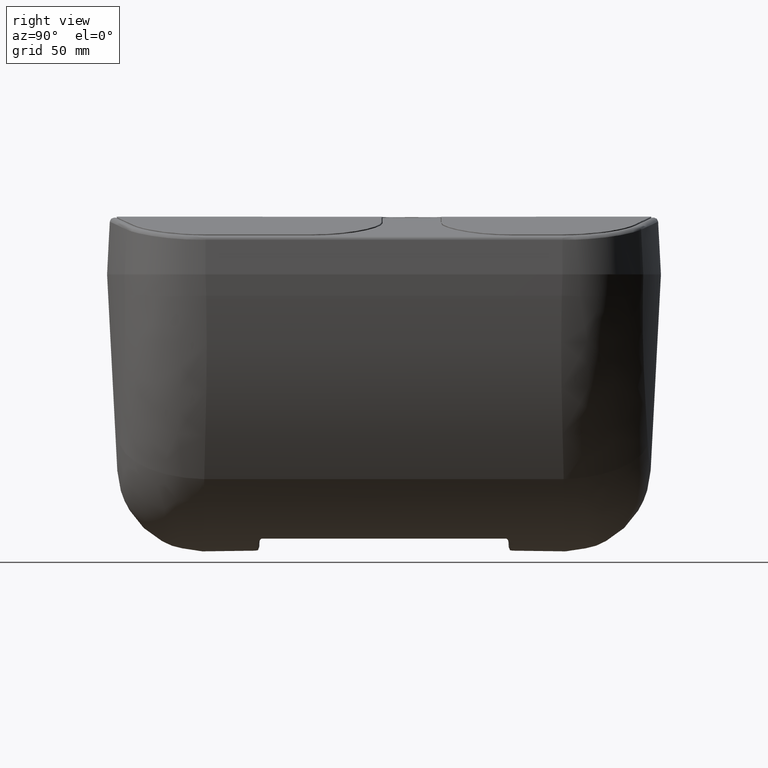
[diagram: clean part render]
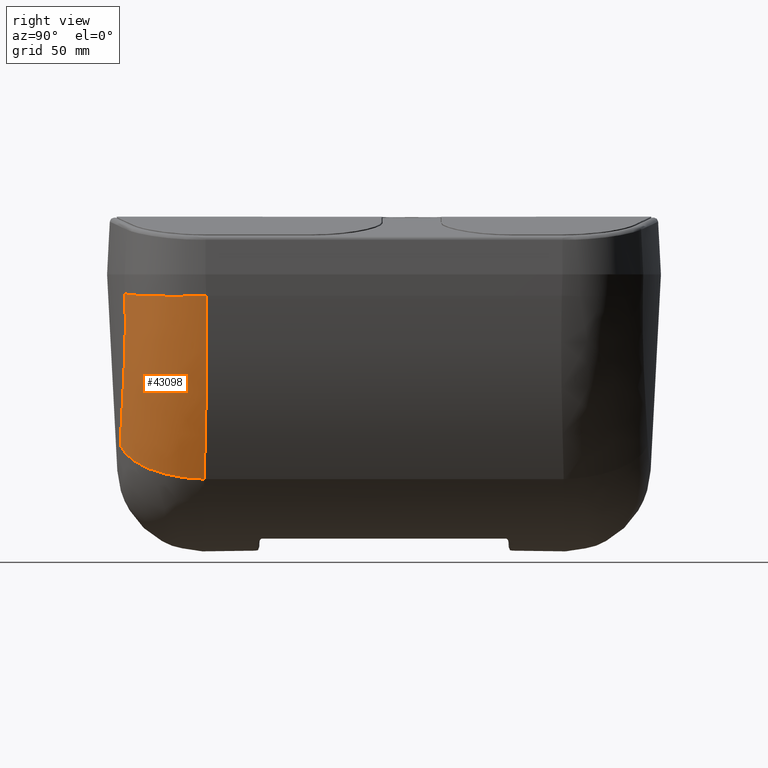
[diagram: same view with one face highlighted and labeled with its STEP entity id]
A machine part, right view. The second image highlights one B-rep face of the part: STEP entity #43098.
In plain terms, the highlighted face is a freeform B-spline surface patch.
Its self-contained STEP definition (entity closure, byte-faithful):
#28 = CARTESIAN_POINT ( 'NONE',  ( 102.6880744185381786, -74.46765090442934820, 180.0080427086077748 ) ) ;
#342 = CARTESIAN_POINT ( 'NONE',  ( 107.5233315510198793, -74.14801886505104278, 195.9130129633897184 ) ) ;
#1865 = CARTESIAN_POINT ( 'NONE',  ( 115.2677420138169424, -73.86664111753746909, 231.0019915778732695 ) ) ;
#2188 = CARTESIAN_POINT ( 'NONE',  ( 115.0557382207752966, -73.86460015047060779, 229.7412136715756503 ) ) ;
#2505 = CARTESIAN_POINT ( 'NONE',  ( 96.87713605865188526, -74.86188382930973262, 163.8505284648486509 ) ) ;
#2734 = CARTESIAN_POINT ( 'NONE',  ( 57.93484198085950965, -132.9534420501113630, 191.1462815431364106 ) ) ;
#2906 = CARTESIAN_POINT ( 'NONE',  ( 47.46240212546818782, -134.0877507554619683, 171.2327251379268773 ) ) ;
#3055 = CARTESIAN_POINT ( 'NONE',  ( 49.15040018680180367, -133.9357757998661498, 173.8437133007533930 ) ) ;
#3090 = DIRECTION ( 'NONE',  ( -0.8908958539379461250, -2.312964634635741971E-16, 0.4542076369196997310 ) ) ;
#3139 = CARTESIAN_POINT ( 'NONE',  ( 90.45401142443256504, -75.25871148540151978, 148.4622655863896625 ) ) ;
#3230 = CARTESIAN_POINT ( 'NONE',  ( 53.10353927042646660, -133.4935285167586017, 181.6343623793563040 ) ) ;
#3366 = CARTESIAN_POINT ( 'NONE',  ( 92.78147570289031876, -75.13207360624586784, 153.3153352518434360 ) ) ;
#3768 = CARTESIAN_POINT ( 'NONE',  ( 94.24478865777388137, -75.03165109083221296, 157.2748724945473668 ) ) ;
#3864 = CARTESIAN_POINT ( 'NONE',  ( 75.09791999875054103, -131.1901629204618871, 246.9448547064063462 ) ) ;
#4007 = CARTESIAN_POINT ( 'NONE',  ( 117.1956903018090088, -117.7084786861889967, 238.9633445920878785 ) ) ;
#4491 = CARTESIAN_POINT ( 'NONE',  ( 66.21844951055484785, -131.9402972552949507, 212.2081935436594620 ) ) ;
#4878 = CARTESIAN_POINT ( 'NONE',  ( 102.7926427599841190, -74.46049131991986769, 180.3241205648104142 ) ) ;
#5193 = CARTESIAN_POINT ( 'NONE',  ( 114.8527623671903370, -73.86348089053228705, 228.5569833686334391 ) ) ;
#6381 = CARTESIAN_POINT ( 'NONE',  ( 109.3779118012106295, -74.04002137304551923, 202.8781760469770461 ) ) ;
#6697 = CARTESIAN_POINT ( 'NONE',  ( 112.9091205139253873, -73.88293089900913913, 218.0408572802224114 ) ) ;
#7739 = CARTESIAN_POINT ( 'NONE',  ( 46.09141439600490031, -134.2186315959887395, 168.9002310336180699 ) ) ;
#7887 = CARTESIAN_POINT ( 'NONE',  ( 118.8363715756120058, -117.9975095657040924, 260.7092020585711794 ) ) ;
#7968 = CARTESIAN_POINT ( 'NONE',  ( 90.39076804418510847, -75.26229375422104795, 148.3208255347009015 ) ) ;
#8215 = CARTESIAN_POINT ( 'NONE',  ( 93.32560607171312483, -124.2410391985190472, 154.5846484020884475 ) ) ;
#8293 = CARTESIAN_POINT ( 'NONE',  ( 96.88669032588016705, -74.86125342028837792, 163.8751135697414156 ) ) ;
#8691 = CARTESIAN_POINT ( 'NONE',  ( 61.14674542171906779, -132.5516802088349380, 198.9621806254170622 ) ) ;
#9340 = CARTESIAN_POINT ( 'NONE',  ( 72.61991795630291335, -131.2963466133667509, 234.6433105888233683 ) ) ;
#10027 = CARTESIAN_POINT ( 'NONE',  ( 116.6317724241420279, -73.91007515785794624, 239.9237680583365488 ) ) ;
#10456 = B_SPLINE_CURVE_WITH_KNOTS ( 'NONE', 3,
 ( #51189, #60547, #36026, #55720, #10027, #16013, #29682, #1865, #2188, #11519, #31169, #49359, #5193, #39658, #30856, #50865, #50545, #6697, #26330, #24840, #6381, #44522, #31491, #14832, #21535, #26664, #342, #60206, #60864, #41162, #36345, #56026, #21845, #16983, #19701, #34502, #44212, #12149, #4878, #28, #61511, #32781, #56974, #23106, #52455, #27615, #32454, #28244, #26980, #38227, #42767, #61828, #17941, #43090, #62460, #37595, #36971, #46664, #8293, #2505, #22157, #47292, #56660, #52134, #3768, #42133, #27932, #12781, #18263, #47604, #3139, #7968, #47919, #41800, #57917, #37915, #17634, #57276, #62785 ),
 .UNSPECIFIED., .F., .F.,
 ( 4, 2, 2, 1, 1, 1, 1, 1, 1, 1, 2, 2, 2, 2, 1, 1, 1, 1, 1, 1, 1, 2, 2, 2, 2, 1, 1, 1, 1, 1, 1, 1, 2, 2, 2, 2, 2, 1, 1, 1, 1, 1, 2, 2, 2, 2, 1, 1, 1, 1, 1, 1, 1, 2, 2, 4 ),
 ( 0.0000000000000000000, 0.1249999999997906952, 0.1874999999996860289, 0.2187499999996334321, 0.2343749999996068700, 0.2421874999995938527, 0.2460937499995876909, 0.2480468749995848876, 0.2490234374995834721, 0.2495117187495824729, 0.2497558593745820288, 0.2499999999995815569, 0.3749999999993696709, 0.4374999999992639776, 0.4687499999992114641, 0.4843749999991850963, 0.4921874999991717181, 0.4960937499991646682, 0.4980468749991614485, 0.4990234374991601163, 0.4995117187491595612, 0.4997558593741592281, 0.4999999999991589505, 0.5624999999991198152, 0.5937499999991002753, 0.6093749999990901722, 0.6171874999990850652, 0.6210937499990824007, 0.6230468749990809574, 0.6240234374990802912, 0.6245117187490797361, 0.6247558593740796251, 0.6248779296865797361, 0.6249999999990797361, 0.6874999999992011945, 0.7187499999992619237, 0.7343749999992920108, 0.7421874999993069988, 0.7460937499993143263, 0.7480468749993177680, 0.7490234374993196553, 0.7495117187493206545, 0.7497558593743208766, 0.7499999999993210986, 0.7812499999993935962, 0.8124999999994660937, 0.8437499999995385913, 0.8593749999995751176, 0.8671874999995934363, 0.8710937499996025402, 0.8730468749996068700, 0.8740234374996086464, 0.8745117187496096456, 0.8747558593746103117, 0.8749999999996109779, 1.000000000000000000 ),
 .UNSPECIFIED. ) ;
#11519 = CARTESIAN_POINT ( 'NONE',  ( 114.9479942715929610, -73.86390757266599394, 229.1098943911721335 ) ) ;
#12149 = CARTESIAN_POINT ( 'NONE',  ( 103.0001537435234837, -74.44629518110424726, 180.9540422773642661 ) ) ;
#12248 = CARTESIAN_POINT ( 'NONE',  ( 45.17979539038668690, -134.3044628237438189, 167.3633573179837981 ) ) ;
#12427 = DIRECTION ( 'NONE',  ( -0.4540875050644075372, -0.02299789865196005118, -0.8906602238800024329 ) ) ;
#12563 = CARTESIAN_POINT ( 'NONE',  ( 45.94011745180475259, -134.2329903198227044, 168.6438340946550625 ) ) ;
#12781 = CARTESIAN_POINT ( 'NONE',  ( 91.33333300329172744, -75.20832781150792812, 150.4445025261493356 ) ) ;
#12878 = CARTESIAN_POINT ( 'NONE',  ( 52.90136120768281813, -133.5159358289716920, 181.2407655374335036 ) ) ;
#13200 = CARTESIAN_POINT ( 'NONE',  ( 77.25983388141270325, -131.3686387344520483, 263.2822624504900091 ) ) ;
#13348 = CARTESIAN_POINT ( 'NONE',  ( 82.98892329264931789, -75.62785733024065848, 132.8417682641254487 ) ) ;
#13392 = CIRCLE ( 'NONE', #44290, 60.00000000000002132 ) ;
#13520 = CARTESIAN_POINT ( 'NONE',  ( 73.22306437511065269, -131.2540689561539864, 237.2635829099629063 ) ) ;
#14146 = CARTESIAN_POINT ( 'NONE',  ( 73.72104828138347443, -131.2265162421819866, 239.6040968677436354 ) ) ;
#14463 = CARTESIAN_POINT ( 'NONE',  ( 60.23131144409079951, -132.6626567313341809, 196.7885130189739584 ) ) ;
#14832 = CARTESIAN_POINT ( 'NONE',  ( 107.8266155723585769, -74.12946507098516236, 197.0126945880000164 ) ) ;
#16013 = CARTESIAN_POINT ( 'NONE',  ( 116.0060154793103635, -73.88359058746387120, 235.6579132009242983 ) ) ;
#16983 = CARTESIAN_POINT ( 'NONE',  ( 104.8367635256604729, -74.32179616773815667, 186.7219030989610644 ) ) ;
#17079 = CARTESIAN_POINT ( 'NONE',  ( 43.16289204952209957, -134.4865226423888487, 164.0498706347949849 ) ) ;
#17634 = CARTESIAN_POINT ( 'NONE',  ( 87.69822278241062463, -75.41445907392403569, 142.3085662975741172 ) ) ;
#17725 = CARTESIAN_POINT ( 'NONE',  ( 52.18628138169875541, -133.5946440492377576, 179.8605716150595697 ) ) ;
#17861 = FACE_OUTER_BOUND ( 'NONE', #52682, .T. ) ;
#17941 = CARTESIAN_POINT ( 'NONE',  ( 97.61406340787547720, -74.81305152629596478, 165.7630982070861307 ) ) ;
#18039 = CARTESIAN_POINT ( 'NONE',  ( 72.45373439618984435, -131.3083291393946581, 233.9294613243520757 ) ) ;
#18263 = CARTESIAN_POINT ( 'NONE',  ( 90.83225474022313506, -75.23717149040042784, 149.3113223198158153 ) ) ;
#18360 = CIRCLE ( 'NONE', #50262, 60.00000000000127187 ) ;
#18674 = CARTESIAN_POINT ( 'NONE',  ( 75.34379954855197070, -131.1912848611616766, 248.4173881919582243 ) ) ;
#19624 = EDGE_CURVE ( 'NONE', #34467, #44819, #13392, .T. ) ;
#19701 = CARTESIAN_POINT ( 'NONE',  ( 104.4125404873087177, -74.35030751851866171, 185.3544300630387625 ) ) ;
#21535 = CARTESIAN_POINT ( 'NONE',  ( 107.6538310300616246, -74.14000207335472226, 196.3846678251127571 ) ) ;
#21836 = EDGE_CURVE ( 'NONE', #48395, #41010, #18360, .T. ) ;
#21845 = CARTESIAN_POINT ( 'NONE',  ( 106.0564792797326135, -74.24076150569622712, 190.7398259792840918 ) ) ;
#21940 = CARTESIAN_POINT ( 'NONE',  ( 38.62291730448689009, -134.8543590705365602, 156.9902970483954050 ) ) ;
#22157 = CARTESIAN_POINT ( 'NONE',  ( 96.87157105668910617, -74.86225098183219018, 163.8362114021828972 ) ) ;
#22396 = CARTESIAN_POINT ( 'NONE',  ( 101.3690504000999937, -121.9912145759621467, 175.5335316998794042 ) ) ;
#22569 = CARTESIAN_POINT ( 'NONE',  ( 48.64694797883534960, -133.9689949195052918, 173.3161227555240487 ) ) ;
#22715 = CARTESIAN_POINT ( 'NONE',  ( 104.8147082710859905, -120.9875623203964921, 186.0477622853384503 ) ) ;
#23106 = CARTESIAN_POINT ( 'NONE',  ( 102.5904878431257572, -74.47433582060281765, 179.7138758142972392 ) ) ;
#23202 = CARTESIAN_POINT ( 'NONE',  ( 72.21753016993064023, -131.3259975713982044, 232.9304486069858910 ) ) ;
#23513 = CARTESIAN_POINT ( 'NONE',  ( 64.53245094951624594, -132.1423502294051389, 207.6330870586182868 ) ) ;
#23653 = CARTESIAN_POINT ( 'NONE',  ( 113.4659127012409954, -73.78106453703020406, 217.3036767393404318 ) ) ;
#24134 = CARTESIAN_POINT ( 'NONE',  ( 53.07034658639718572, -133.4972115431576185, 181.5696470816430406 ) ) ;
#24840 = CARTESIAN_POINT ( 'NONE',  ( 110.4291534933159085, -73.98504585392794297, 207.0858726046429297 ) ) ;
#26330 = CARTESIAN_POINT ( 'NONE',  ( 111.0823720406600756, -73.95475071204882056, 209.8538051821016097 ) ) ;
#26664 = CARTESIAN_POINT ( 'NONE',  ( 107.5669183005361873, -74.14533574020757101, 196.0702916142883225 ) ) ;
#26777 = CARTESIAN_POINT ( 'NONE',  ( 59.08104943872677239, -74.26718185681723128, 266.2748229992731694 ) ) ;
#26965 = CARTESIAN_POINT ( 'NONE',  ( 38.62291730448689009, -134.8543590705365602, 156.9902970483954050 ) ) ;
#26980 = CARTESIAN_POINT ( 'NONE',  ( 99.63896574714107146, -74.67677095857325753, 171.2006869084373193 ) ) ;
#27209 = CARTESIAN_POINT ( 'NONE',  ( 117.3127609908450069, -73.71545109479679070, 239.3786538718314318 ) ) ;
#27534 = CARTESIAN_POINT ( 'NONE',  ( 71.38720294370320119, -131.3242593890780938, 226.5143980975784075 ) ) ;
#27615 = CARTESIAN_POINT ( 'NONE',  ( 102.5843433135509031, -74.47475683960144011, 179.6953792395366065 ) ) ;
#27638 = CARTESIAN_POINT ( 'NONE',  ( 82.98892329264937473, -75.62785733024057322, 132.8417682641258466 ) ) ;
#27856 = CARTESIAN_POINT ( 'NONE',  ( 44.15005236430400970, -134.4412921465757336, 165.2909646564013997 ) ) ;
#27932 = CARTESIAN_POINT ( 'NONE',  ( 92.32435367428341522, -75.15021638895339606, 152.7146095586998058 ) ) ;
#28019 = CARTESIAN_POINT ( 'NONE',  ( 69.75537631972362362, -131.5492098175734554, 223.5361762222663629 ) ) ;
#28142 = ORIENTED_EDGE ( 'NONE', *, *, #41449, .F. ) ;
#28244 = CARTESIAN_POINT ( 'NONE',  ( 101.0579441659480295, -74.57985518136031544, 175.1710168484142685 ) ) ;
#28335 = CARTESIAN_POINT ( 'NONE',  ( 71.73277447016495501, -131.3644078400632793, 230.9337335717395661 ) ) ;
#28667 = CARTESIAN_POINT ( 'NONE',  ( 57.37705171842082308, -133.0051203728382063, 190.2876982863919295 ) ) ;
#29682 = CARTESIAN_POINT ( 'NONE',  ( 115.6778994223590615, -73.87334629750104398, 233.5160492434879416 ) ) ;
#30856 = CARTESIAN_POINT ( 'NONE',  ( 114.8429946658208820, -73.86344674467189009, 228.5005373941308164 ) ) ;
#31169 = CARTESIAN_POINT ( 'NONE',  ( 114.8936854361962503, -73.86364326019580062, 228.7940030443512285 ) ) ;
#31491 = CARTESIAN_POINT ( 'NONE',  ( 108.1680382707292836, -74.10891239159047927, 198.2658351741418699 ) ) ;
#32454 = CARTESIAN_POINT ( 'NONE',  ( 101.8756510144656033, -74.52331711452849561, 177.5623274507433109 ) ) ;
#32781 = CARTESIAN_POINT ( 'NONE',  ( 102.6092911072385050, -74.47304750566854636, 179.7704962797470216 ) ) ;
#33187 = CARTESIAN_POINT ( 'NONE',  ( 64.50783080793361535, -132.1453018709822231, 207.5663787400985427 ) ) ;
#33501 = CARTESIAN_POINT ( 'NONE',  ( 74.40944897418664539, -131.2013678895992541, 243.1235737519059228 ) ) ;
#34467 = VERTEX_POINT ( 'NONE', #27638 ) ;
#34502 = CARTESIAN_POINT ( 'NONE',  ( 103.7480253645088624, -74.39532423983932574, 183.2616838808330328 ) ) ;
#36026 = CARTESIAN_POINT ( 'NONE',  ( 118.0223172205679560, -74.03666325661284020, 251.1289169809384134 ) ) ;
#36345 = CARTESIAN_POINT ( 'NONE',  ( 107.4823163485875455, -74.15054869172236351, 195.7652440687941180 ) ) ;
#36746 = CARTESIAN_POINT ( 'NONE',  ( 44.10338152663978661, -134.4034587351344783, 165.5753921024310102 ) ) ;
#36971 = CARTESIAN_POINT ( 'NONE',  ( 96.93439071800827378, -74.85810519363225524, 163.9979226543046877 ) ) ;
#37375 = CARTESIAN_POINT ( 'NONE',  ( 52.66396380585756276, -133.5421610825657694, 180.7805010972456898 ) ) ;
#37515 = CARTESIAN_POINT ( 'NONE',  ( 38.62291730448700378, -134.8543590705367023, 156.9902970483954050 ) ) ;
#37595 = CARTESIAN_POINT ( 'NONE',  ( 97.00095047232719025, -74.85370957509906020, 164.1694924044159904 ) ) ;
#37915 = CARTESIAN_POINT ( 'NONE',  ( 90.33260196406516229, -75.26558360878476606, 148.1908718514551992 ) ) ;
#38011 = CARTESIAN_POINT ( 'NONE',  ( 55.33025493991343779, -133.2462353246470457, 185.9807343333099823 ) ) ;
#38227 = CARTESIAN_POINT ( 'NONE',  ( 99.13384398922416096, -74.71109433047175230, 169.8133833087164817 ) ) ;
#38314 = CARTESIAN_POINT ( 'NONE',  ( 67.72446133827668291, -131.7648144189568598, 216.7296221206813414 ) ) ;
#39658 = CARTESIAN_POINT ( 'NONE',  ( 114.8469025287333380, -73.86346025662949444, 228.5231161962202009 ) ) ;
#41010 = VERTEX_POINT ( 'NONE', #58154 ) ;
#41162 = CARTESIAN_POINT ( 'NONE',  ( 107.4859023283124202, -74.15032731691749746, 195.7781547709810184 ) ) ;
#41449 = EDGE_CURVE ( 'NONE', #48395, #34467, #10456, .T. ) ;
#41578 = CARTESIAN_POINT ( 'NONE',  ( 41.25807925533297293, -134.6497483396376538, 161.0082149261948814 ) ) ;
#41800 = CARTESIAN_POINT ( 'NONE',  ( 90.34555850459119597, -75.26485115696459616, 148.2198091762993499 ) ) ;
#42133 = CARTESIAN_POINT ( 'NONE',  ( 93.15469055939053078, -75.09967963001621172, 154.6667089566117284 ) ) ;
#42227 = CARTESIAN_POINT ( 'NONE',  ( 50.37072773161050065, -133.7896568206949723, 176.4522738293713928 ) ) ;
#42508 = ORIENTED_EDGE ( 'NONE', *, *, #57791, .F. ) ;
#42545 = CARTESIAN_POINT ( 'NONE',  ( 72.57029416176585812, -131.2998828947012839, 234.4291312840453827 ) ) ;
#42767 = CARTESIAN_POINT ( 'NONE',  ( 98.32409490204193503, -74.76560655756088636, 167.6382537028895854 ) ) ;
#42864 = CARTESIAN_POINT ( 'NONE',  ( 64.20277861358798077, -132.1819194647272582, 206.7441278345097544 ) ) ;
#43090 = CARTESIAN_POINT ( 'NONE',  ( 97.39496181256399154, -74.82762557345613175, 165.1900603124549889 ) ) ;
#43098 = ADVANCED_FACE ( 'NONE', ( #17861 ), #44590, .T. ) ;
#43184 = CARTESIAN_POINT ( 'NONE',  ( 75.27099286026901837, -131.1906699801072023, 247.9754859869394465 ) ) ;
#43328 = CARTESIAN_POINT ( 'NONE',  ( 61.73269625724180543, -132.4763268265746774, 199.9078958604953868 ) ) ;
#43561 = ORIENTED_EDGE ( 'NONE', *, *, #21836, .T. ) ;
#43826 = CARTESIAN_POINT ( 'NONE',  ( 71.29607353672190584, -131.4024940536814370, 229.2245154732059120 ) ) ;
#44212 = CARTESIAN_POINT ( 'NONE',  ( 103.4087216786081029, -74.41839502428712194, 182.2049276952166394 ) ) ;
#44290 = AXIS2_PLACEMENT_3D ( 'NONE', #57870, #12427, #3090 ) ;
#44522 = CARTESIAN_POINT ( 'NONE',  ( 108.8344362109589980, -74.06989233417900209, 200.7603830135793146 ) ) ;
#44590 =( BOUNDED_SURFACE ( )  B_SPLINE_SURFACE ( 3, 2, ( 
 ( #57522, #7887, #51741 ),
 ( #48159, #4007, #27209 ),
 ( #27534, #62702, #23653 ),
 ( #43328, #22715, #46890 ),
 ( #2734, #22396, #47209 ),
 ( #3055, #8215, #3366 ),
 ( #27856, #62069, #52691 ),
 ( #37515, #57203, #13348 ) ),
 .UNSPECIFIED., .F., .F., .T. ) 
 B_SPLINE_SURFACE_WITH_KNOTS ( ( 4, 2, 2, 4 ),
 ( 3, 3 ),
 ( 0.0000000000000000000, 0.5000000000000000000, 0.7500000000000000000, 1.000000000000000000 ),
 ( 0.0000000000000000000, 1.000000000000000000 ),
 .UNSPECIFIED. ) 
 GEOMETRIC_REPRESENTATION_ITEM ( )  RATIONAL_B_SPLINE_SURFACE ( (
 ( 1.000000000000000000, 0.8080109209540180526, 1.000000000000000000),
 ( 1.000000000000000000, 0.8064965269216110011, 1.000000000000000000),
 ( 1.000000000000000000, 0.8014377818951829990, 1.000000000000000000),
 ( 1.000000000000000000, 0.7893785780478259628, 1.000000000000000000),
 ( 1.000000000000000000, 0.7846130338477309563, 1.000000000000000000),
 ( 1.000000000000000000, 0.7737471942520129931, 1.000000000000000000),
 ( 1.000000000000000000, 0.7676336587021109770, 1.000000000000000000),
 ( 1.000000000000000000, 0.7610631982911010285, 1.000000000000000000) ) ) 
 REPRESENTATION_ITEM ( '' )  SURFACE ( )  );
#44819 = VERTEX_POINT ( 'NONE', #26965 ) ;
#46470 = DIRECTION ( 'NONE',  ( -0.07121587451951415237, 0.02957947996511838679, -0.9970222432731449258 ) ) ;
#46664 = CARTESIAN_POINT ( 'NONE',  ( 96.90101485835387507, -74.86030817628378031, 163.9119799599961027 ) ) ;
#46890 = CARTESIAN_POINT ( 'NONE',  ( 104.4853934472660200, -74.33560720739687611, 184.9775803426444440 ) ) ;
#47070 = CARTESIAN_POINT ( 'NONE',  ( 46.16608618917564399, -134.2115235320465558, 169.0270268929897099 ) ) ;
#47209 = CARTESIAN_POINT ( 'NONE',  ( 100.9526698641980147, -74.59302186159696646, 174.3339456383943968 ) ) ;
#47292 = CARTESIAN_POINT ( 'NONE',  ( 96.35606963889897258, -74.89625873923989730, 162.5101805831056083 ) ) ;
#47604 = CARTESIAN_POINT ( 'NONE',  ( 90.58032434586294812, -75.25154032175051100, 148.7452052631079198 ) ) ;
#47919 = CARTESIAN_POINT ( 'NONE',  ( 90.35912462562586711, -75.26408406037924692, 148.2501129647450000 ) ) ;
#48012 = CARTESIAN_POINT ( 'NONE',  ( 74.73900496224740664, -131.1928362479954728, 244.8854888194737214 ) ) ;
#48159 = CARTESIAN_POINT ( 'NONE',  ( 75.52272813882250091, -130.9466656735542927, 244.6782120122403796 ) ) ;
#48338 = CARTESIAN_POINT ( 'NONE',  ( 75.41574671162364041, -131.1920734050308397, 248.8578213926159037 ) ) ;
#48395 = VERTEX_POINT ( 'NONE', #49826 ) ;
#48644 = CARTESIAN_POINT ( 'NONE',  ( 64.38106995758056428, -132.1605074300364322, 207.2237101276081432 ) ) ;
#49359 = CARTESIAN_POINT ( 'NONE',  ( 114.8664216348400231, -73.86353159806870394, 228.6359995541600654 ) ) ;
#49826 = CARTESIAN_POINT ( 'NONE',  ( 118.9285714285716011, -74.26718185681855289, 261.9999999999985221 ) ) ;
#50262 = AXIS2_PLACEMENT_3D ( 'NONE', #26777, #46470, #61298 ) ;
#50545 = CARTESIAN_POINT ( 'NONE',  ( 113.9498137008259420, -73.86047184044630853, 223.3430520854173267 ) ) ;
#50865 = CARTESIAN_POINT ( 'NONE',  ( 114.8408217045783175, -73.86343938336447934, 228.4879866736600320 ) ) ;
#51189 = CARTESIAN_POINT ( 'NONE',  ( 118.9285714285716011, -74.26718185681855289, 261.9999999999985221 ) ) ;
#51705 = ORIENTED_EDGE ( 'NONE', *, *, #19624, .F. ) ;
#51741 = CARTESIAN_POINT ( 'NONE',  ( 118.9285714285720132, -74.26718185681851025, 261.9999999999982379 ) ) ;
#52134 = CARTESIAN_POINT ( 'NONE',  ( 94.78033043238653477, -74.99777695183286141, 158.5791915057094172 ) ) ;
#52227 = CARTESIAN_POINT ( 'NONE',  ( 63.11260172906921184, -132.3133792892475924, 203.8704372655375323 ) ) ;
#52455 = CARTESIAN_POINT ( 'NONE',  ( 102.5867253020474834, -74.47459362547715500, 179.7025491508768766 ) ) ;
#52682 = EDGE_LOOP ( 'NONE', ( #51705, #28142, #43561, #42508 ) ) ;
#52691 = CARTESIAN_POINT ( 'NONE',  ( 88.12996176714712249, -75.41380373586444819, 142.9255482131524388 ) ) ;
#52857 = CARTESIAN_POINT ( 'NONE',  ( 62.46625624222804873, -132.3917288133906709, 202.2326845560618835 ) ) ;
#53511 = CARTESIAN_POINT ( 'NONE',  ( 72.66903739853827915, -131.2928725900667644, 234.8559517153582021 ) ) ;
#55720 = CARTESIAN_POINT ( 'NONE',  ( 117.0083107032805145, -73.93572619207833441, 242.7438333733530840 ) ) ;
#56026 = CARTESIAN_POINT ( 'NONE',  ( 106.7990630362666451, -74.19273758473454450, 193.3057391303339614 ) ) ;
#56442 = CARTESIAN_POINT ( 'NONE',  ( 39.95642348262151700, -134.7547003342278913, 158.9929605279051259 ) ) ;
#56660 = CARTESIAN_POINT ( 'NONE',  ( 95.83630329125941216, -74.93006003431096929, 161.1976407728496667 ) ) ;
#56754 = CARTESIAN_POINT ( 'NONE',  ( 45.71280073554198964, -134.2544979897433848, 168.2593845791921865 ) ) ;
#56974 = CARTESIAN_POINT ( 'NONE',  ( 102.5961307409260570, -74.47394918194649449, 179.7308645657857085 ) ) ;
#57065 = CARTESIAN_POINT ( 'NONE',  ( 53.00279366606842757, -133.5047006470134932, 181.4380859088194882 ) ) ;
#57203 = CARTESIAN_POINT ( 'NONE',  ( 83.52312111118381210, -126.7541900595479376, 133.8895591488023911 ) ) ;
#57276 = CARTESIAN_POINT ( 'NONE',  ( 85.21623891567067233, -75.53512024588093254, 137.2104888506349880 ) ) ;
#57376 = CARTESIAN_POINT ( 'NONE',  ( 63.84327885553683757, -132.2251764534308904, 205.7855062405379840 ) ) ;
#57522 = CARTESIAN_POINT ( 'NONE',  ( 77.25983388141280273, -131.3686387344521052, 263.2822624504897817 ) ) ;
#57689 = CARTESIAN_POINT ( 'NONE',  ( 72.65292707825506113, -131.2940077006805382, 234.7861045755428506 ) ) ;
#57791 = EDGE_CURVE ( 'NONE', #44819, #41010, #60224, .T. ) ;
#57870 = CARTESIAN_POINT ( 'NONE',  ( 29.53517205637227505, -75.62785733024051638, 160.0942264793074230 ) ) ;
#57917 = CARTESIAN_POINT ( 'NONE',  ( 90.33651338926583207, -75.26536251524761667, 148.1996070060405088 ) ) ;
#58004 = CARTESIAN_POINT ( 'NONE',  ( 76.81619702566987939, -131.2608716601922936, 258.5310016210917752 ) ) ;
#58154 = CARTESIAN_POINT ( 'NONE',  ( 77.25983388141270325, -131.3686387344520483, 263.2822624504900091 ) ) ;
#58332 = CARTESIAN_POINT ( 'NONE',  ( 70.39432887868554189, -131.4852515280971090, 225.8090975279796453 ) ) ;
#60206 = CARTESIAN_POINT ( 'NONE',  ( 107.5015055462946378, -74.14936450032696769, 195.8343510218547294 ) ) ;
#60224 = B_SPLINE_CURVE_WITH_KNOTS ( 'NONE', 3,
 ( #21940, #56442, #41578, #17079, #36746, #12248, #56754, #12563, #7739, #47070, #2906, #22569, #42227, #61925, #17725, #37375, #12878, #57065, #24134, #3230, #38011, #28667, #14463, #8691, #52857, #52227, #57376, #42864, #48644, #63508, #33187, #23513, #4491, #38314, #28019, #58332, #43826, #28335, #23202, #18039, #42545, #9340, #57689, #53511, #13520, #14146, #33501, #48012, #3864, #43184, #18674, #62555, #48338, #62875, #58004, #13200 ),
 .UNSPECIFIED., .F., .F.,
 ( 4, 2, 1, 1, 1, 2, 2, 2, 1, 1, 1, 1, 2, 2, 2, 2, 1, 1, 1, 1, 2, 2, 2, 2, 1, 1, 1, 1, 2, 2, 2, 1, 1, 1, 2, 2, 4 ),
 ( 0.0000000000000000000, 0.06250000000000435763, 0.09375000000000686950, 0.1093750000000077993, 0.1171875000000085210, 0.1210937500000089373, 0.1250000000000093814, 0.1875000000000153488, 0.2187500000000183187, 0.2343750000000198452, 0.2421875000000206501, 0.2460937500000210387, 0.2480468750000209277, 0.2500000000000208167, 0.3750000000000206501, 0.4375000000000205391, 0.4687500000000204836, 0.4843750000000203726, 0.4921875000000204281, 0.4960937500000204281, 0.4980468750000204836, 0.5000000000000204281, 0.6250000000000143219, 0.6875000000000113243, 0.7187500000000097700, 0.7343750000000094369, 0.7421875000000093259, 0.7460937500000092149, 0.7480468750000091038, 0.7500000000000089928, 0.8125000000000031086, 0.8437500000000002220, 0.8593749999999987788, 0.8671874999999983347, 0.8710937499999981126, 0.8749999999999978906, 1.000000000000000000 ),
 .UNSPECIFIED. ) ;
#60547 = CARTESIAN_POINT ( 'NONE',  ( 118.5441939680894166, -74.13593324880019964, 256.6187155532452380 ) ) ;
#60864 = CARTESIAN_POINT ( 'NONE',  ( 107.4921445485140197, -74.14994207391403336, 195.8006339170690637 ) ) ;
#61298 = DIRECTION ( 'NONE',  ( -0.9974586998307347629, 0.0000000000000000000, 0.07124704998791342447 ) ) ;
#61511 = CARTESIAN_POINT ( 'NONE',  ( 102.6355862709546045, -74.47124607545958952, 179.8497248774920934 ) ) ;
#61828 = CARTESIAN_POINT ( 'NONE',  ( 98.04549725967029872, -74.78428182813082969, 166.8975172803157818 ) ) ;
#61925 = CARTESIAN_POINT ( 'NONE',  ( 51.21935846049910879, -133.6996846157175014, 178.0231131366080604 ) ) ;
#62069 = CARTESIAN_POINT ( 'NONE',  ( 88.68560344841141330, -125.4968086416910467, 144.1015603491474621 ) ) ;
#62460 = CARTESIAN_POINT ( 'NONE',  ( 97.13330398018432277, -74.84495972511213324, 164.5113684999283805 ) ) ;
#62555 = CARTESIAN_POINT ( 'NONE',  ( 75.39203355656312056, -131.1917834013656829, 248.7120347777392055 ) ) ;
#62702 = CARTESIAN_POINT ( 'NONE',  ( 113.4627031171760052, -118.5714643068610883, 217.5190825127624237 ) ) ;
#62785 = CARTESIAN_POINT ( 'NONE',  ( 82.98892329264937473, -75.62785733024057322, 132.8417682641258466 ) ) ;
#62875 = CARTESIAN_POINT ( 'NONE',  ( 76.20989887866170420, -131.2033462143855900, 253.7724334304034528 ) ) ;
#63508 = CARTESIAN_POINT ( 'NONE',  ( 64.45716811524734169, -132.1513777965038514, 207.4293035440209678 ) ) ;